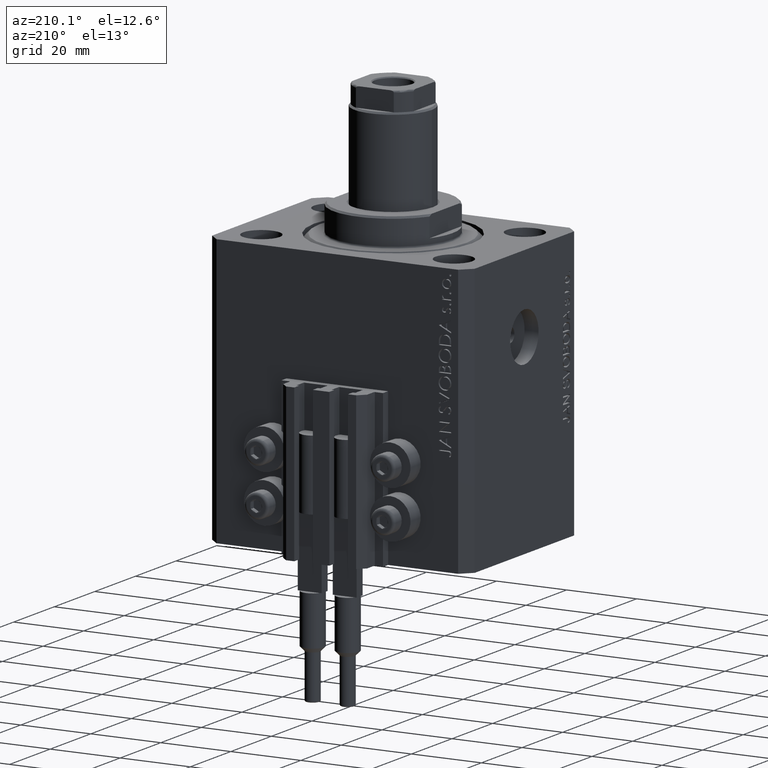
[diagram: clean part render]
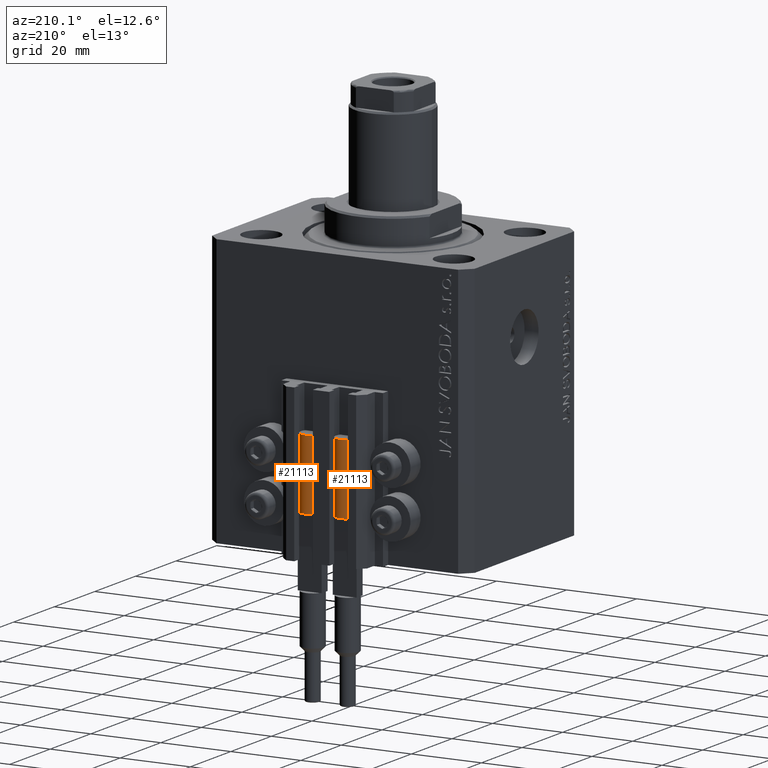
[diagram: same view with one multi-face feature highlighted, each face labeled with its STEP entity id]
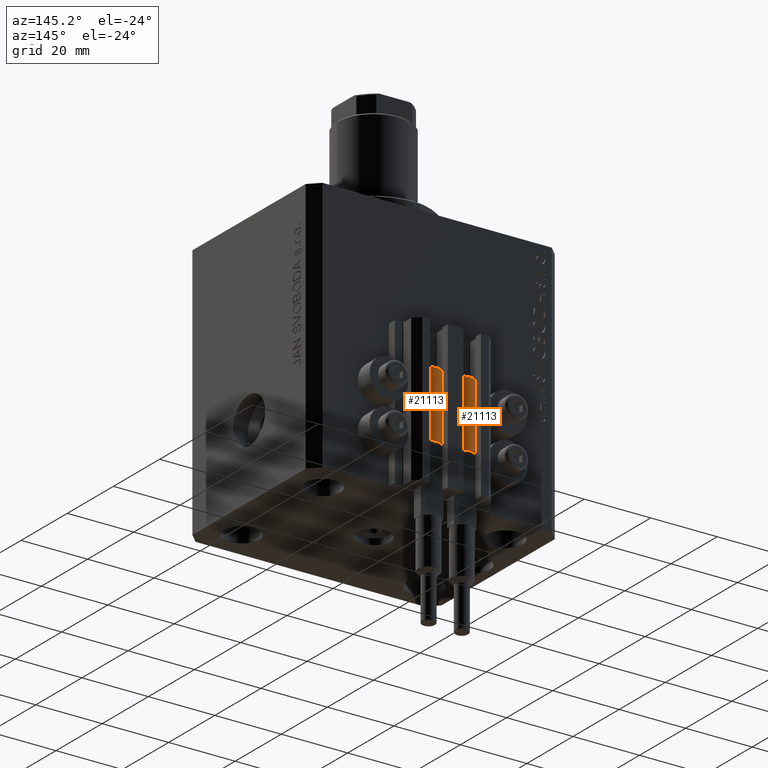
[diagram: same view with one multi-face feature highlighted, each face labeled with its STEP entity id]
A machine part, auxiliary view. The highlighted faces form ONE feature: a constant-radius fillet chain: 2 tangent blend faces with common blend radius 3.4 mm. The faces share edges in the B-rep.
A second angle (auxiliary view) of the same feature is appended — it is thin or edge-on in the first view.
Their STEP definitions:
[1] entity #21113 (Cylinder):
#488 = VERTEX_POINT ( 'NONE', #23104 ) ;
#749 = AXIS2_PLACEMENT_3D ( 'NONE', #44344, #40674, #29218 ) ;
#1087 = CARTESIAN_POINT ( 'NONE',  ( -3.400000000000000355, 0.000000000000000000, 20.00000000000000000 ) ) ;
#1355 = DIRECTION ( 'NONE',  ( 1.000000000000000000, 0.000000000000000000, 0.000000000000000000 ) ) ;
#1857 = VERTEX_POINT ( 'NONE', #3006 ) ;
#2427 = CARTESIAN_POINT ( 'NONE',  ( 3.051229260478471428, -1.500000000000000000, 20.00000000000000000 ) ) ;
#3006 = CARTESIAN_POINT ( 'NONE',  ( -3.399999999999999467, -4.915049848600952119E-16, 20.00000000000000000 ) ) ;
#3229 = VECTOR ( 'NONE', #9742, 1000.000000000000000 ) ;
#4459 = DIRECTION ( 'NONE',  ( 1.000000000000000000, 0.000000000000000000, 0.000000000000000000 ) ) ;
#5237 = VERTEX_POINT ( 'NONE', #37838 ) ;
#7109 = DIRECTION ( 'NONE',  ( -0.000000000000000000, -0.000000000000000000, -1.000000000000000000 ) ) ;
#7955 = VERTEX_POINT ( 'NONE', #2427 ) ;
#8243 = EDGE_LOOP ( 'NONE', ( #28894, #26126, #45225, #46439, #38473, #46256 ) ) ;
#8949 = CARTESIAN_POINT ( 'NONE',  ( 3.400000000000000355, 0.000000000000000000, 20.00000000000000000 ) ) ;
#9325 = VERTEX_POINT ( 'NONE', #19455 ) ;
#9422 = AXIS2_PLACEMENT_3D ( 'NONE', #37077, #25354, #33413 ) ;
#9742 = DIRECTION ( 'NONE',  ( -0.000000000000000000, -0.000000000000000000, -1.000000000000000000 ) ) ;
#13175 = LINE ( 'NONE', #46169, #3229 ) ;
#13356 = CIRCLE ( 'NONE', #9422, 3.400000000000000355 ) ;
#15664 = VECTOR ( 'NONE', #46289, 1000.000000000000000 ) ;
#16190 = DIRECTION ( 'NONE',  ( 0.000000000000000000, 0.000000000000000000, 1.000000000000000000 ) ) ;
#17358 = EDGE_CURVE ( 'NONE', #37909, #9325, #13175, .T. ) ;
#18135 = FACE_OUTER_BOUND ( 'NONE', #8243, .T. ) ;
#18521 = EDGE_CURVE ( 'NONE', #1857, #488, #18803, .T. ) ;
#18803 = CIRCLE ( 'NONE', #44526, 3.400000000000000355 ) ;
#19455 = CARTESIAN_POINT ( 'NONE',  ( 3.400000000000000355, 4.163799117101001052E-16, 0.000000000000000000 ) ) ;
#21113 = ADVANCED_FACE ( 'NONE', ( #18135 ), #25677, .T. ) ;
#22038 = DIRECTION ( 'NONE',  ( -1.000000000000000000, 0.000000000000000000, 0.000000000000000000 ) ) ;
#23104 = CARTESIAN_POINT ( 'NONE',  ( -3.051229260478471428, -1.500000000000000000, 20.00000000000000000 ) ) ;
#25354 = DIRECTION ( 'NONE',  ( 0.000000000000000000, 0.000000000000000000, 1.000000000000000000 ) ) ;
#25677 = CYLINDRICAL_SURFACE ( 'NONE', #30644, 3.400000000000000355 ) ;
#25954 = CIRCLE ( 'NONE', #44683, 3.400000000000000355 ) ;
#26126 = ORIENTED_EDGE ( 'NONE', *, *, #39417, .F. ) ;
#26580 = EDGE_CURVE ( 'NONE', #1857, #5237, #38456, .T. ) ;
#28894 = ORIENTED_EDGE ( 'NONE', *, *, #17358, .F. ) ;
#29218 = DIRECTION ( 'NONE',  ( 1.000000000000000000, 0.000000000000000000, 0.000000000000000000 ) ) ;
#30644 = AXIS2_PLACEMENT_3D ( 'NONE', #40569, #7109, #22038 ) ;
#31174 = CARTESIAN_POINT ( 'NONE',  ( 0.000000000000000000, 0.000000000000000000, 0.000000000000000000 ) ) ;
#33413 = DIRECTION ( 'NONE',  ( 1.000000000000000000, 0.000000000000000000, 0.000000000000000000 ) ) ;
#36004 = EDGE_CURVE ( 'NONE', #488, #7955, #13356, .T. ) ;
#36640 = CIRCLE ( 'NONE', #749, 3.400000000000000355 ) ;
#37077 = CARTESIAN_POINT ( 'NONE',  ( 0.000000000000000000, 0.000000000000000000, 20.00000000000000000 ) ) ;
#37838 = CARTESIAN_POINT ( 'NONE',  ( -3.400000000000000355, 0.000000000000000000, 0.000000000000000000 ) ) ;
#37909 = VERTEX_POINT ( 'NONE', #8949 ) ;
#38024 = DIRECTION ( 'NONE',  ( 0.000000000000000000, 0.000000000000000000, 1.000000000000000000 ) ) ;
#38456 = LINE ( 'NONE', #1087, #15664 ) ;
#38473 = ORIENTED_EDGE ( 'NONE', *, *, #26580, .T. ) ;
#39083 = EDGE_CURVE ( 'NONE', #5237, #9325, #25954, .T. ) ;
#39417 = EDGE_CURVE ( 'NONE', #7955, #37909, #36640, .T. ) ;
#40569 = CARTESIAN_POINT ( 'NONE',  ( 0.000000000000000000, 0.000000000000000000, 20.00000000000000000 ) ) ;
#40674 = DIRECTION ( 'NONE',  ( 0.000000000000000000, 0.000000000000000000, 1.000000000000000000 ) ) ;
#41605 = CARTESIAN_POINT ( 'NONE',  ( 0.000000000000000000, 0.000000000000000000, 20.00000000000000000 ) ) ;
#44344 = CARTESIAN_POINT ( 'NONE',  ( 0.000000000000000000, 0.000000000000000000, 20.00000000000000000 ) ) ;
#44526 = AXIS2_PLACEMENT_3D ( 'NONE', #41605, #16190, #4459 ) ;
#44683 = AXIS2_PLACEMENT_3D ( 'NONE', #31174, #38024, #1355 ) ;
#45225 = ORIENTED_EDGE ( 'NONE', *, *, #36004, .F. ) ;
#46169 = CARTESIAN_POINT ( 'NONE',  ( 3.400000000000000355, 4.163799117101001052E-16, 20.00000000000000000 ) ) ;
#46256 = ORIENTED_EDGE ( 'NONE', *, *, #39083, .T. ) ;
#46289 = DIRECTION ( 'NONE',  ( -0.000000000000000000, -0.000000000000000000, -1.000000000000000000 ) ) ;
#46439 = ORIENTED_EDGE ( 'NONE', *, *, #18521, .F. ) ;
[2] entity #21113 (Cylinder):
#488 = VERTEX_POINT ( 'NONE', #23104 ) ;
#749 = AXIS2_PLACEMENT_3D ( 'NONE', #44344, #40674, #29218 ) ;
#1087 = CARTESIAN_POINT ( 'NONE',  ( -3.400000000000000355, 0.000000000000000000, 20.00000000000000000 ) ) ;
#1355 = DIRECTION ( 'NONE',  ( 1.000000000000000000, 0.000000000000000000, 0.000000000000000000 ) ) ;
#1857 = VERTEX_POINT ( 'NONE', #3006 ) ;
#2427 = CARTESIAN_POINT ( 'NONE',  ( 3.051229260478471428, -1.500000000000000000, 20.00000000000000000 ) ) ;
#3006 = CARTESIAN_POINT ( 'NONE',  ( -3.399999999999999467, -4.915049848600952119E-16, 20.00000000000000000 ) ) ;
#3229 = VECTOR ( 'NONE', #9742, 1000.000000000000000 ) ;
#4459 = DIRECTION ( 'NONE',  ( 1.000000000000000000, 0.000000000000000000, 0.000000000000000000 ) ) ;
#5237 = VERTEX_POINT ( 'NONE', #37838 ) ;
#7109 = DIRECTION ( 'NONE',  ( -0.000000000000000000, -0.000000000000000000, -1.000000000000000000 ) ) ;
#7955 = VERTEX_POINT ( 'NONE', #2427 ) ;
#8243 = EDGE_LOOP ( 'NONE', ( #28894, #26126, #45225, #46439, #38473, #46256 ) ) ;
#8949 = CARTESIAN_POINT ( 'NONE',  ( 3.400000000000000355, 0.000000000000000000, 20.00000000000000000 ) ) ;
#9325 = VERTEX_POINT ( 'NONE', #19455 ) ;
#9422 = AXIS2_PLACEMENT_3D ( 'NONE', #37077, #25354, #33413 ) ;
#9742 = DIRECTION ( 'NONE',  ( -0.000000000000000000, -0.000000000000000000, -1.000000000000000000 ) ) ;
#13175 = LINE ( 'NONE', #46169, #3229 ) ;
#13356 = CIRCLE ( 'NONE', #9422, 3.400000000000000355 ) ;
#15664 = VECTOR ( 'NONE', #46289, 1000.000000000000000 ) ;
#16190 = DIRECTION ( 'NONE',  ( 0.000000000000000000, 0.000000000000000000, 1.000000000000000000 ) ) ;
#17358 = EDGE_CURVE ( 'NONE', #37909, #9325, #13175, .T. ) ;
#18135 = FACE_OUTER_BOUND ( 'NONE', #8243, .T. ) ;
#18521 = EDGE_CURVE ( 'NONE', #1857, #488, #18803, .T. ) ;
#18803 = CIRCLE ( 'NONE', #44526, 3.400000000000000355 ) ;
#19455 = CARTESIAN_POINT ( 'NONE',  ( 3.400000000000000355, 4.163799117101001052E-16, 0.000000000000000000 ) ) ;
#21113 = ADVANCED_FACE ( 'NONE', ( #18135 ), #25677, .T. ) ;
#22038 = DIRECTION ( 'NONE',  ( -1.000000000000000000, 0.000000000000000000, 0.000000000000000000 ) ) ;
#23104 = CARTESIAN_POINT ( 'NONE',  ( -3.051229260478471428, -1.500000000000000000, 20.00000000000000000 ) ) ;
#25354 = DIRECTION ( 'NONE',  ( 0.000000000000000000, 0.000000000000000000, 1.000000000000000000 ) ) ;
#25677 = CYLINDRICAL_SURFACE ( 'NONE', #30644, 3.400000000000000355 ) ;
#25954 = CIRCLE ( 'NONE', #44683, 3.400000000000000355 ) ;
#26126 = ORIENTED_EDGE ( 'NONE', *, *, #39417, .F. ) ;
#26580 = EDGE_CURVE ( 'NONE', #1857, #5237, #38456, .T. ) ;
#28894 = ORIENTED_EDGE ( 'NONE', *, *, #17358, .F. ) ;
#29218 = DIRECTION ( 'NONE',  ( 1.000000000000000000, 0.000000000000000000, 0.000000000000000000 ) ) ;
#30644 = AXIS2_PLACEMENT_3D ( 'NONE', #40569, #7109, #22038 ) ;
#31174 = CARTESIAN_POINT ( 'NONE',  ( 0.000000000000000000, 0.000000000000000000, 0.000000000000000000 ) ) ;
#33413 = DIRECTION ( 'NONE',  ( 1.000000000000000000, 0.000000000000000000, 0.000000000000000000 ) ) ;
#36004 = EDGE_CURVE ( 'NONE', #488, #7955, #13356, .T. ) ;
#36640 = CIRCLE ( 'NONE', #749, 3.400000000000000355 ) ;
#37077 = CARTESIAN_POINT ( 'NONE',  ( 0.000000000000000000, 0.000000000000000000, 20.00000000000000000 ) ) ;
#37838 = CARTESIAN_POINT ( 'NONE',  ( -3.400000000000000355, 0.000000000000000000, 0.000000000000000000 ) ) ;
#37909 = VERTEX_POINT ( 'NONE', #8949 ) ;
#38024 = DIRECTION ( 'NONE',  ( 0.000000000000000000, 0.000000000000000000, 1.000000000000000000 ) ) ;
#38456 = LINE ( 'NONE', #1087, #15664 ) ;
#38473 = ORIENTED_EDGE ( 'NONE', *, *, #26580, .T. ) ;
#39083 = EDGE_CURVE ( 'NONE', #5237, #9325, #25954, .T. ) ;
#39417 = EDGE_CURVE ( 'NONE', #7955, #37909, #36640, .T. ) ;
#40569 = CARTESIAN_POINT ( 'NONE',  ( 0.000000000000000000, 0.000000000000000000, 20.00000000000000000 ) ) ;
#40674 = DIRECTION ( 'NONE',  ( 0.000000000000000000, 0.000000000000000000, 1.000000000000000000 ) ) ;
#41605 = CARTESIAN_POINT ( 'NONE',  ( 0.000000000000000000, 0.000000000000000000, 20.00000000000000000 ) ) ;
#44344 = CARTESIAN_POINT ( 'NONE',  ( 0.000000000000000000, 0.000000000000000000, 20.00000000000000000 ) ) ;
#44526 = AXIS2_PLACEMENT_3D ( 'NONE', #41605, #16190, #4459 ) ;
#44683 = AXIS2_PLACEMENT_3D ( 'NONE', #31174, #38024, #1355 ) ;
#45225 = ORIENTED_EDGE ( 'NONE', *, *, #36004, .F. ) ;
#46169 = CARTESIAN_POINT ( 'NONE',  ( 3.400000000000000355, 4.163799117101001052E-16, 20.00000000000000000 ) ) ;
#46256 = ORIENTED_EDGE ( 'NONE', *, *, #39083, .T. ) ;
#46289 = DIRECTION ( 'NONE',  ( -0.000000000000000000, -0.000000000000000000, -1.000000000000000000 ) ) ;
#46439 = ORIENTED_EDGE ( 'NONE', *, *, #18521, .F. ) ;